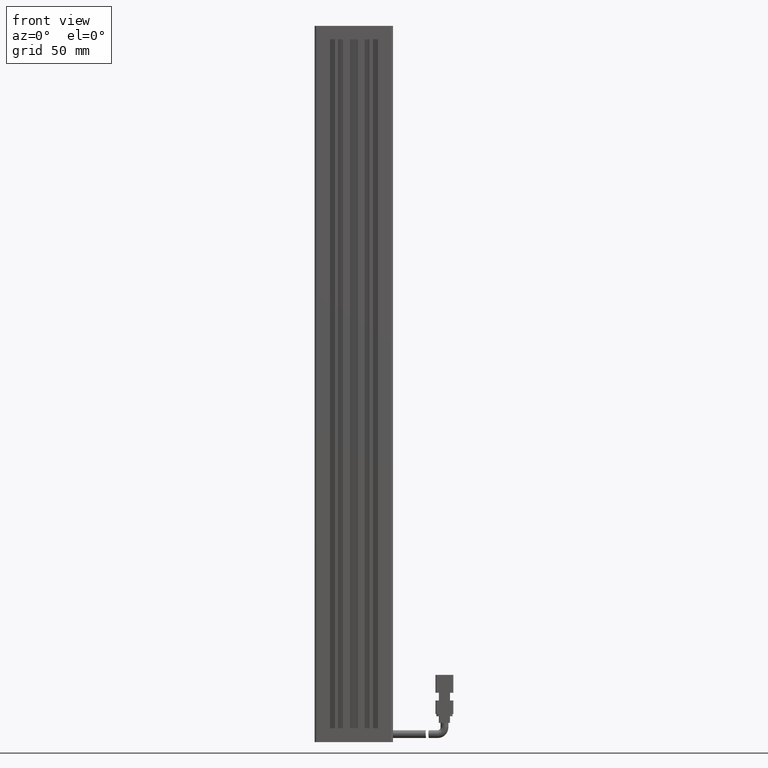
[diagram: clean part render]
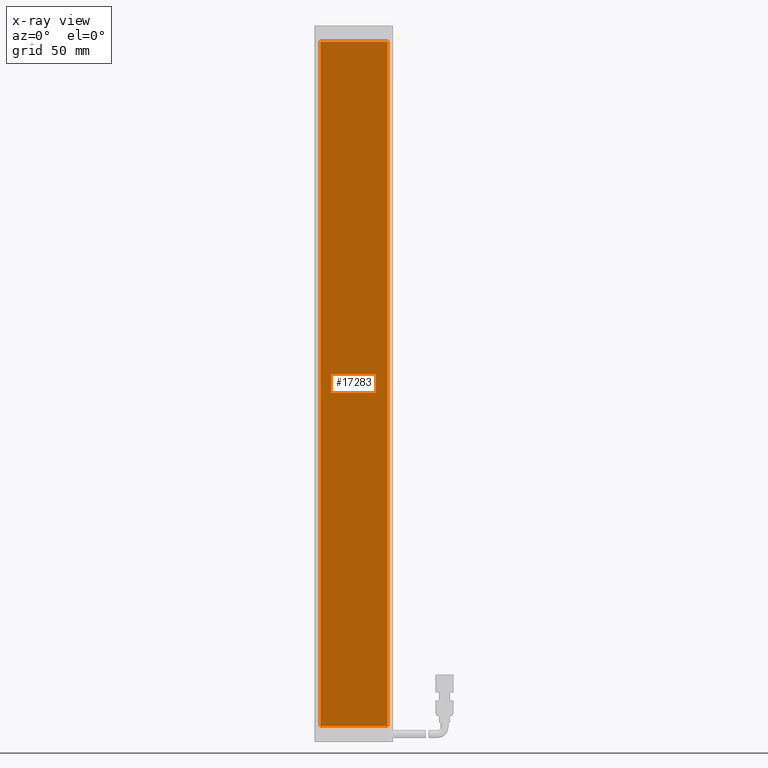
[diagram: x-ray — body ghosted, one internal face saturated and labeled with its STEP entity id]
A machine part, front view, then the same camera in x-ray: the body is ghosted and one INTERNAL B-rep face — a face not visible from any outside direction — is saturated and labeled: STEP entity #17283.
In plain terms, the highlighted planar face has unit normal (0, 1, 0).
Its self-contained STEP definition (entity closure, byte-faithful):
#2870 = EDGE_CURVE ( 'NONE', #111979, #71923, #47499, .T. ) ;
#3479 = DIRECTION ( 'NONE',  ( 0.0000000000000000000, -0.0000000000000000000, 1.000000000000000000 ) ) ;
#6939 = EDGE_CURVE ( 'NONE', #86230, #73697, #32953, .T. ) ;
#7416 = LINE ( 'NONE', #123865, #105025 ) ;
#12094 = ORIENTED_EDGE ( 'NONE', *, *, #6939, .F. ) ;
#17283 = ADVANCED_FACE ( 'NONE', ( #40720 ), #104446, .F. ) ;
#22669 = ORIENTED_EDGE ( 'NONE', *, *, #2870, .F. ) ;
#29609 = EDGE_LOOP ( 'NONE', ( #126582, #12094, #42445, #22669 ) ) ;
#32953 = LINE ( 'NONE', #49197, #52123 ) ;
#35071 = EDGE_CURVE ( 'NONE', #73697, #111979, #117721, .T. ) ;
#35583 = CARTESIAN_POINT ( 'NONE',  ( 56.00470476028716900, 34.09073232304837800, -115.0000000000000100 ) ) ;
#36019 = DIRECTION ( 'NONE',  ( 0.0000000000000000000, 0.0000000000000000000, -1.000000000000000000 ) ) ;
#40513 = CARTESIAN_POINT ( 'NONE',  ( 56.00470476028716900, 34.09073232304837800, -268.0000000000000000 ) ) ;
#40720 = FACE_OUTER_BOUND ( 'NONE', #29609, .T. ) ;
#42445 = ORIENTED_EDGE ( 'NONE', *, *, #48595, .F. ) ;
#47499 = LINE ( 'NONE', #40513, #52291 ) ;
#48595 = EDGE_CURVE ( 'NONE', #71923, #86230, #7416, .T. ) ;
#49197 = CARTESIAN_POINT ( 'NONE',  ( 26.00470476028720800, 34.09073232304837800, 37.99999999999997900 ) ) ;
#50984 = CARTESIAN_POINT ( 'NONE',  ( 56.00470476028716900, 34.09073232304837800, -268.0000000000000000 ) ) ;
#52123 = VECTOR ( 'NONE', #131159, 1000.000000000000000 ) ;
#52291 = VECTOR ( 'NONE', #103226, 1000.000000000000000 ) ;
#53006 = DIRECTION ( 'NONE',  ( 1.247186812793782900E-016, 0.0000000000000000000, 1.000000000000000000 ) ) ;
#53569 = VECTOR ( 'NONE', #36019, 1000.000000000000000 ) ;
#71923 = VERTEX_POINT ( 'NONE', #76277 ) ;
#73697 = VERTEX_POINT ( 'NONE', #120757 ) ;
#76277 = CARTESIAN_POINT ( 'NONE',  ( 26.00470476028716900, 34.09073232304837800, -268.0000000000000000 ) ) ;
#86230 = VERTEX_POINT ( 'NONE', #92299 ) ;
#92299 = CARTESIAN_POINT ( 'NONE',  ( 26.00470476028720800, 34.09073232304837800, 37.99999999999997900 ) ) ;
#103226 = DIRECTION ( 'NONE',  ( -1.000000000000000000, 0.0000000000000000000, 0.0000000000000000000 ) ) ;
#104446 = PLANE ( 'NONE',  #118468 ) ;
#105025 = VECTOR ( 'NONE', #53006, 1000.000000000000000 ) ;
#111979 = VERTEX_POINT ( 'NONE', #50984 ) ;
#116454 = DIRECTION ( 'NONE',  ( 0.0000000000000000000, 1.000000000000000000, 0.0000000000000000000 ) ) ;
#117721 = LINE ( 'NONE', #35583, #53569 ) ;
#118468 = AXIS2_PLACEMENT_3D ( 'NONE', #125479, #116454, #3479 ) ;
#120757 = CARTESIAN_POINT ( 'NONE',  ( 56.00470476028721100, 34.09073232304837800, 37.99999999999997900 ) ) ;
#123865 = CARTESIAN_POINT ( 'NONE',  ( 26.00470476028716900, 34.09073232304837800, -268.0000000000000000 ) ) ;
#125479 = CARTESIAN_POINT ( 'NONE',  ( 0.0000000000000000000, 34.09073232304837800, 0.0000000000000000000 ) ) ;
#126582 = ORIENTED_EDGE ( 'NONE', *, *, #35071, .F. ) ;
#131159 = DIRECTION ( 'NONE',  ( 1.000000000000000000, 0.0000000000000000000, 0.0000000000000000000 ) ) ;